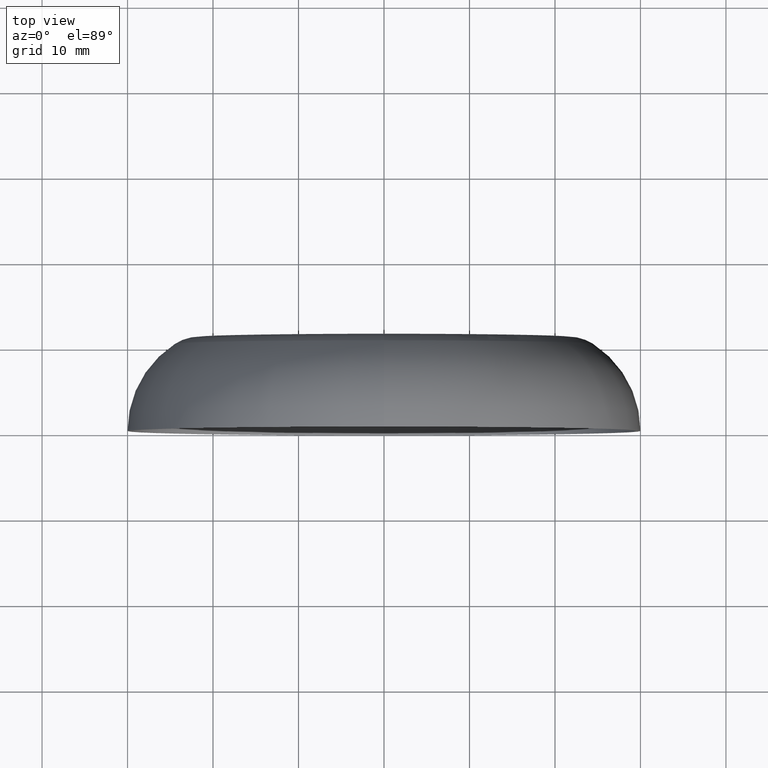
[diagram: clean part render]
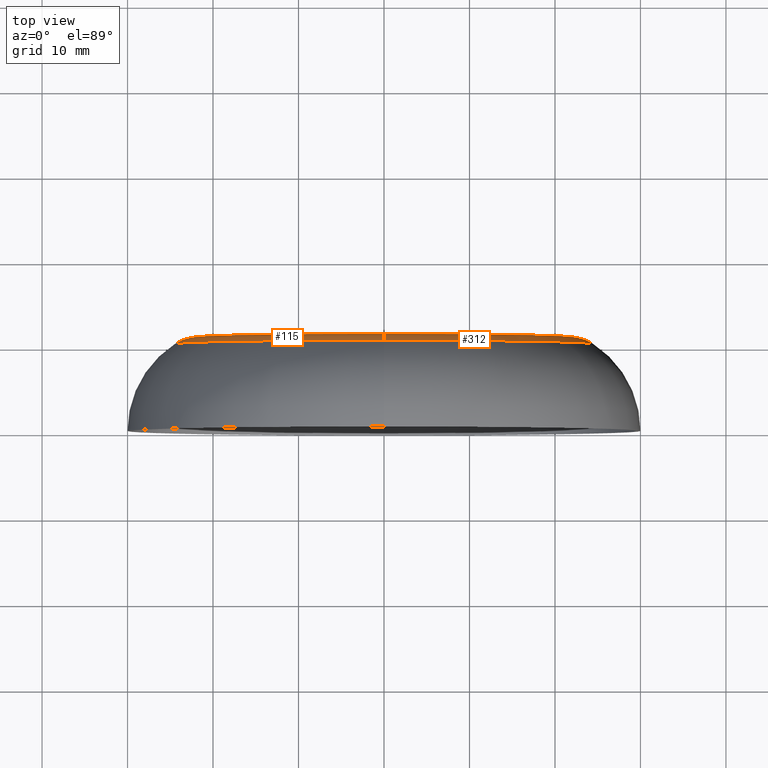
[diagram: same view with one multi-face feature highlighted, each face labeled with its STEP entity id]
A machine part, top view. The highlighted faces form ONE feature: a constant-radius fillet chain: 2 tangent blend faces with common blend radius 5 mm. The faces share edges in the B-rep.
Their STEP definitions:
[1] entity #312 (Torus):
#1 = VERTEX_POINT ( 'NONE', #88 ) ;
#5 = EDGE_CURVE ( 'NONE', #223, #1, #279, .T. ) ;
#22 = DIRECTION ( 'NONE',  ( -0.0000000000000000000, -1.000000000000000000, -0.0000000000000000000 ) ) ;
#24 = ORIENTED_EDGE ( 'NONE', *, *, #124, .F. ) ;
#38 = AXIS2_PLACEMENT_3D ( 'NONE', #264, #162, #354 ) ;
#61 = CARTESIAN_POINT ( 'NONE',  ( 0.0000000000000000000, 10.19999999999999800, -24.44569198360740700 ) ) ;
#64 = AXIS2_PLACEMENT_3D ( 'NONE', #116, #145, #280 ) ;
#68 = FACE_OUTER_BOUND ( 'NONE', #98, .T. ) ;
#75 = VERTEX_POINT ( 'NONE', #61 ) ;
#85 = TOROIDAL_SURFACE ( 'NONE', #173, 21.73275999035729800, 4.999999999999999100 ) ;
#88 = CARTESIAN_POINT ( 'NONE',  ( 2.827614669974782200E-015, 11.00000000000000000, 21.73275999035729800 ) ) ;
#98 = EDGE_LOOP ( 'NONE', ( #366, #376, #241, #24 ) ) ;
#106 = CARTESIAN_POINT ( 'NONE',  ( 0.0000000000000000000, 5.999999999999999100, -21.73275999035729800 ) ) ;
#116 = CARTESIAN_POINT ( 'NONE',  ( 0.0000000000000000000, 11.00000000000000000, 0.0000000000000000000 ) ) ;
#124 = EDGE_CURVE ( 'NONE', #223, #75, #167, .T. ) ;
#145 = DIRECTION ( 'NONE',  ( -0.0000000000000000000, -1.000000000000000000, -0.0000000000000000000 ) ) ;
#159 = CIRCLE ( 'NONE', #38, 5.000000000000000900 ) ;
#160 = CARTESIAN_POINT ( 'NONE',  ( 0.0000000000000000000, 5.999999999999999100, 0.0000000000000000000 ) ) ;
#162 = DIRECTION ( 'NONE',  ( 1.000000000000000000, 0.0000000000000000000, -1.224646799147353200E-016 ) ) ;
#166 = AXIS2_PLACEMENT_3D ( 'NONE', #106, #267, #388 ) ;
#167 = CIRCLE ( 'NONE', #166, 5.000000000000000900 ) ;
#173 = AXIS2_PLACEMENT_3D ( 'NONE', #160, #22, #240 ) ;
#188 = CIRCLE ( 'NONE', #333, 24.44569198360740700 ) ;
#198 = EDGE_CURVE ( 'NONE', #75, #315, #188, .T. ) ;
#223 = VERTEX_POINT ( 'NONE', #346 ) ;
#240 = DIRECTION ( 'NONE',  ( 0.0000000000000000000, 0.0000000000000000000, -1.000000000000000000 ) ) ;
#241 = ORIENTED_EDGE ( 'NONE', *, *, #198, .F. ) ;
#264 = CARTESIAN_POINT ( 'NONE',  ( 2.661495495882872600E-015, 5.999999999999999100, 21.73275999035729800 ) ) ;
#267 = DIRECTION ( 'NONE',  ( -1.000000000000000000, 0.0000000000000000000, 0.0000000000000000000 ) ) ;
#279 = CIRCLE ( 'NONE', #64, 21.73275999035729800 ) ;
#280 = DIRECTION ( 'NONE',  ( 0.0000000000000000000, 0.0000000000000000000, -1.000000000000000000 ) ) ;
#283 = CARTESIAN_POINT ( 'NONE',  ( 0.0000000000000000000, 10.19999999999999800, 0.0000000000000000000 ) ) ;
#312 = ADVANCED_FACE ( 'NONE', ( #68 ), #85, .T. ) ;
#315 = VERTEX_POINT ( 'NONE', #393 ) ;
#325 = DIRECTION ( 'NONE',  ( -0.0000000000000000000, -1.000000000000000000, -0.0000000000000000000 ) ) ;
#333 = AXIS2_PLACEMENT_3D ( 'NONE', #283, #325, #348 ) ;
#346 = CARTESIAN_POINT ( 'NONE',  ( 0.0000000000000000000, 11.00000000000000000, -21.73275999035729800 ) ) ;
#348 = DIRECTION ( 'NONE',  ( 0.0000000000000000000, 0.0000000000000000000, -1.000000000000000000 ) ) ;
#354 = DIRECTION ( 'NONE',  ( -1.224646799147352700E-016, 0.0000000000000000000, -1.000000000000000000 ) ) ;
#366 = ORIENTED_EDGE ( 'NONE', *, *, #5, .T. ) ;
#376 = ORIENTED_EDGE ( 'NONE', *, *, #401, .T. ) ;
#388 = DIRECTION ( 'NONE',  ( 0.0000000000000000000, 0.0000000000000000000, 1.000000000000000000 ) ) ;
#393 = CARTESIAN_POINT ( 'NONE',  ( 2.993733844066692300E-015, 10.19999999999999800, 24.44569198360740700 ) ) ;
#401 = EDGE_CURVE ( 'NONE', #1, #315, #159, .T. ) ;
[2] entity #115 (Torus):
#1 = VERTEX_POINT ( 'NONE', #88 ) ;
#8 = CIRCLE ( 'NONE', #284, 24.44569198360740700 ) ;
#38 = AXIS2_PLACEMENT_3D ( 'NONE', #264, #162, #354 ) ;
#53 = CARTESIAN_POINT ( 'NONE',  ( 0.0000000000000000000, 5.999999999999999100, 0.0000000000000000000 ) ) ;
#54 = ORIENTED_EDGE ( 'NONE', *, *, #117, .T. ) ;
#61 = CARTESIAN_POINT ( 'NONE',  ( 0.0000000000000000000, 10.19999999999999800, -24.44569198360740700 ) ) ;
#75 = VERTEX_POINT ( 'NONE', #61 ) ;
#78 = TOROIDAL_SURFACE ( 'NONE', #179, 21.73275999035729800, 4.999999999999999100 ) ;
#88 = CARTESIAN_POINT ( 'NONE',  ( 2.827614669974782200E-015, 11.00000000000000000, 21.73275999035729800 ) ) ;
#105 = CARTESIAN_POINT ( 'NONE',  ( 0.0000000000000000000, 10.19999999999999800, 0.0000000000000000000 ) ) ;
#106 = CARTESIAN_POINT ( 'NONE',  ( 0.0000000000000000000, 5.999999999999999100, -21.73275999035729800 ) ) ;
#115 = ADVANCED_FACE ( 'NONE', ( #275 ), #78, .T. ) ;
#117 = EDGE_CURVE ( 'NONE', #1, #223, #152, .T. ) ;
#119 = ORIENTED_EDGE ( 'NONE', *, *, #401, .F. ) ;
#124 = EDGE_CURVE ( 'NONE', #223, #75, #167, .T. ) ;
#137 = DIRECTION ( 'NONE',  ( -0.0000000000000000000, -1.000000000000000000, -0.0000000000000000000 ) ) ;
#152 = CIRCLE ( 'NONE', #269, 21.73275999035729800 ) ;
#159 = CIRCLE ( 'NONE', #38, 5.000000000000000900 ) ;
#162 = DIRECTION ( 'NONE',  ( 1.000000000000000000, 0.0000000000000000000, -1.224646799147353200E-016 ) ) ;
#165 = CARTESIAN_POINT ( 'NONE',  ( 0.0000000000000000000, 11.00000000000000000, 0.0000000000000000000 ) ) ;
#166 = AXIS2_PLACEMENT_3D ( 'NONE', #106, #267, #388 ) ;
#167 = CIRCLE ( 'NONE', #166, 5.000000000000000900 ) ;
#179 = AXIS2_PLACEMENT_3D ( 'NONE', #53, #137, #209 ) ;
#209 = DIRECTION ( 'NONE',  ( 0.0000000000000000000, 0.0000000000000000000, -1.000000000000000000 ) ) ;
#223 = VERTEX_POINT ( 'NONE', #346 ) ;
#244 = DIRECTION ( 'NONE',  ( -0.0000000000000000000, -1.000000000000000000, -0.0000000000000000000 ) ) ;
#262 = DIRECTION ( 'NONE',  ( -0.0000000000000000000, -1.000000000000000000, -0.0000000000000000000 ) ) ;
#264 = CARTESIAN_POINT ( 'NONE',  ( 2.661495495882872600E-015, 5.999999999999999100, 21.73275999035729800 ) ) ;
#267 = DIRECTION ( 'NONE',  ( -1.000000000000000000, 0.0000000000000000000, 0.0000000000000000000 ) ) ;
#269 = AXIS2_PLACEMENT_3D ( 'NONE', #165, #244, #386 ) ;
#275 = FACE_OUTER_BOUND ( 'NONE', #396, .T. ) ;
#284 = AXIS2_PLACEMENT_3D ( 'NONE', #105, #262, #383 ) ;
#314 = ORIENTED_EDGE ( 'NONE', *, *, #124, .T. ) ;
#315 = VERTEX_POINT ( 'NONE', #393 ) ;
#344 = EDGE_CURVE ( 'NONE', #315, #75, #8, .T. ) ;
#346 = CARTESIAN_POINT ( 'NONE',  ( 0.0000000000000000000, 11.00000000000000000, -21.73275999035729800 ) ) ;
#354 = DIRECTION ( 'NONE',  ( -1.224646799147352700E-016, 0.0000000000000000000, -1.000000000000000000 ) ) ;
#383 = DIRECTION ( 'NONE',  ( 0.0000000000000000000, 0.0000000000000000000, -1.000000000000000000 ) ) ;
#386 = DIRECTION ( 'NONE',  ( 0.0000000000000000000, 0.0000000000000000000, -1.000000000000000000 ) ) ;
#388 = DIRECTION ( 'NONE',  ( 0.0000000000000000000, 0.0000000000000000000, 1.000000000000000000 ) ) ;
#391 = ORIENTED_EDGE ( 'NONE', *, *, #344, .F. ) ;
#393 = CARTESIAN_POINT ( 'NONE',  ( 2.993733844066692300E-015, 10.19999999999999800, 24.44569198360740700 ) ) ;
#396 = EDGE_LOOP ( 'NONE', ( #119, #54, #314, #391 ) ) ;
#401 = EDGE_CURVE ( 'NONE', #1, #315, #159, .T. ) ;